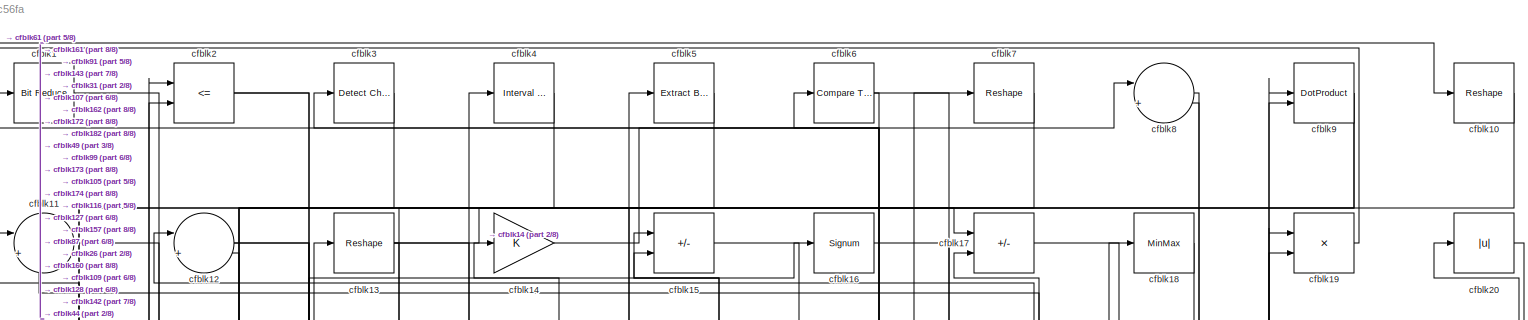
[diagram: root canvas - part 1/8, full width, top band]
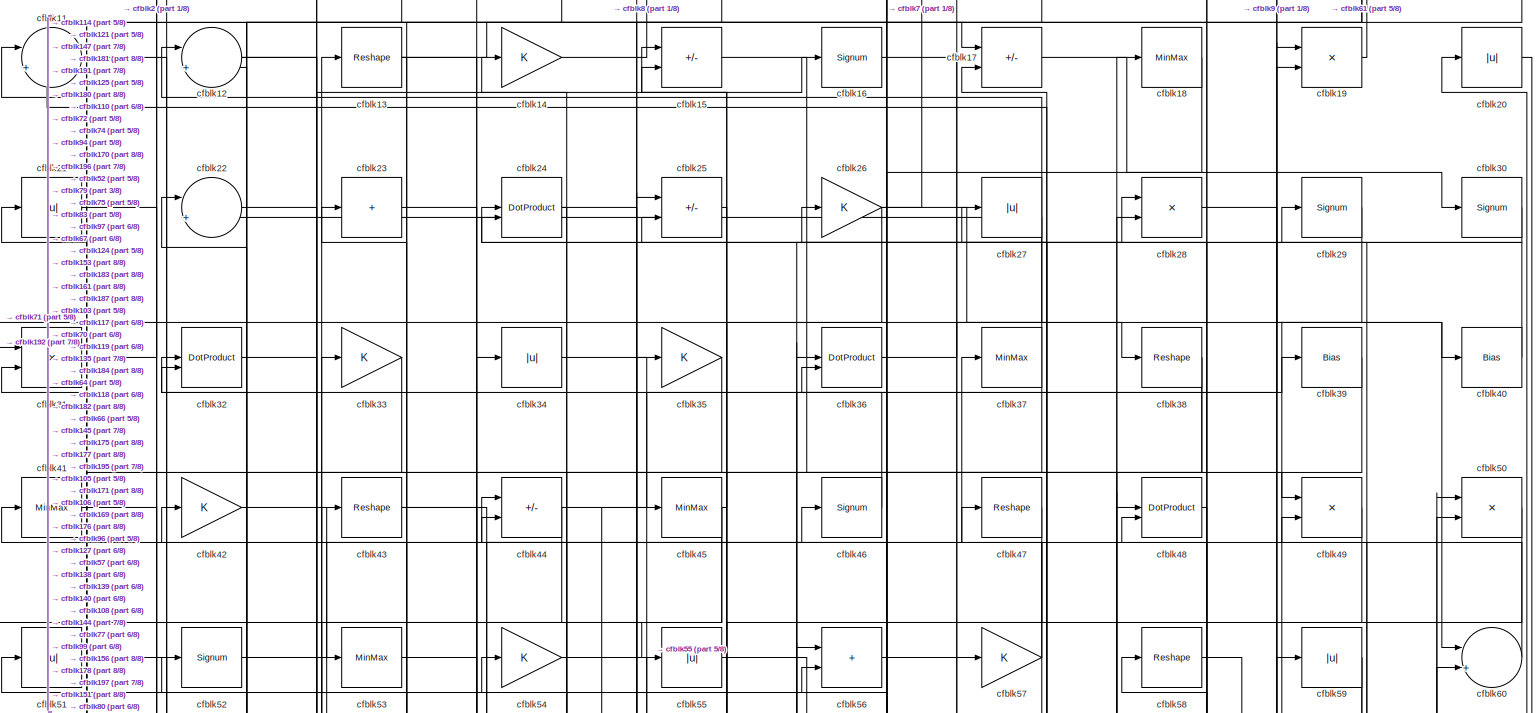
[diagram: root canvas - part 2/8, full width, top band]
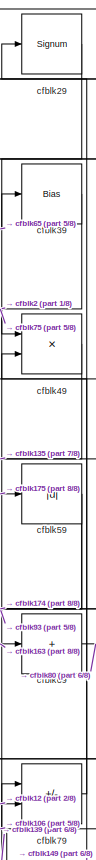
[diagram: root canvas - part 3/8, top right region]
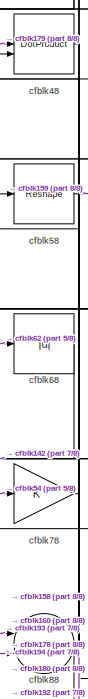
[diagram: root canvas - part 4/8, top right region]
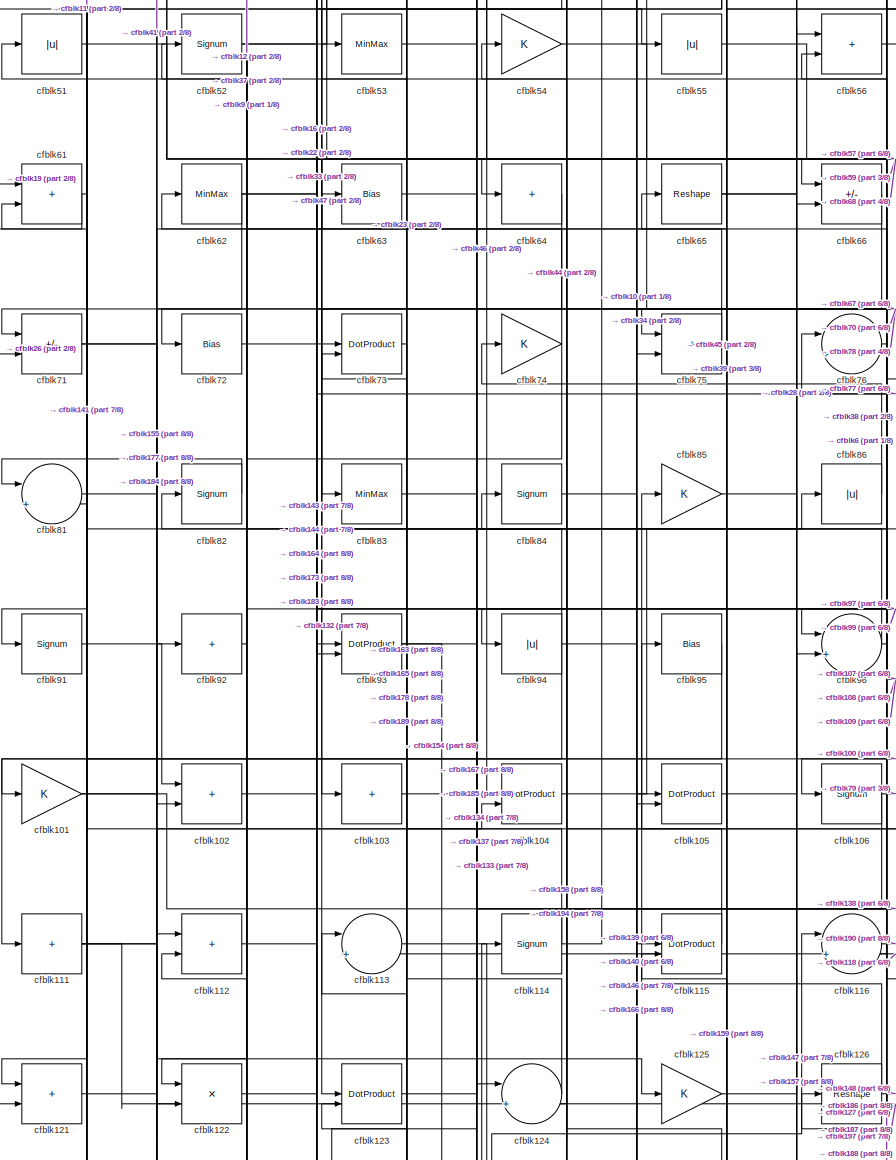
[diagram: root canvas - part 5/8, middle left region]
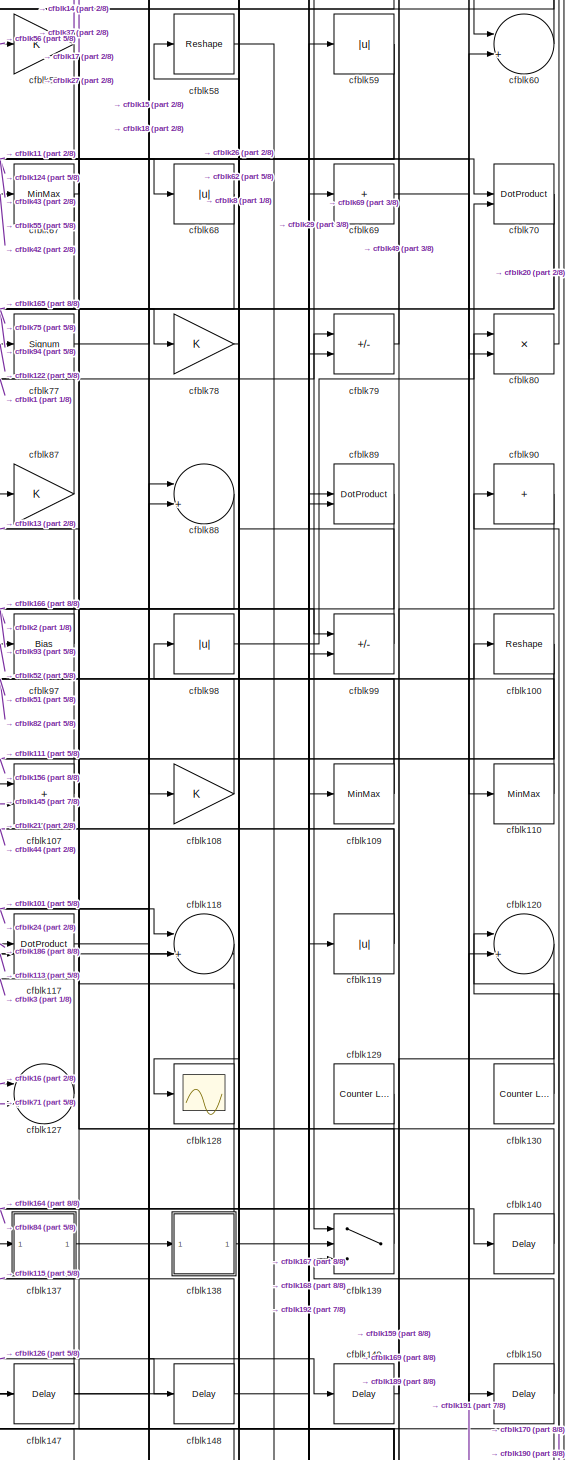
[diagram: root canvas - part 6/8, middle right region]
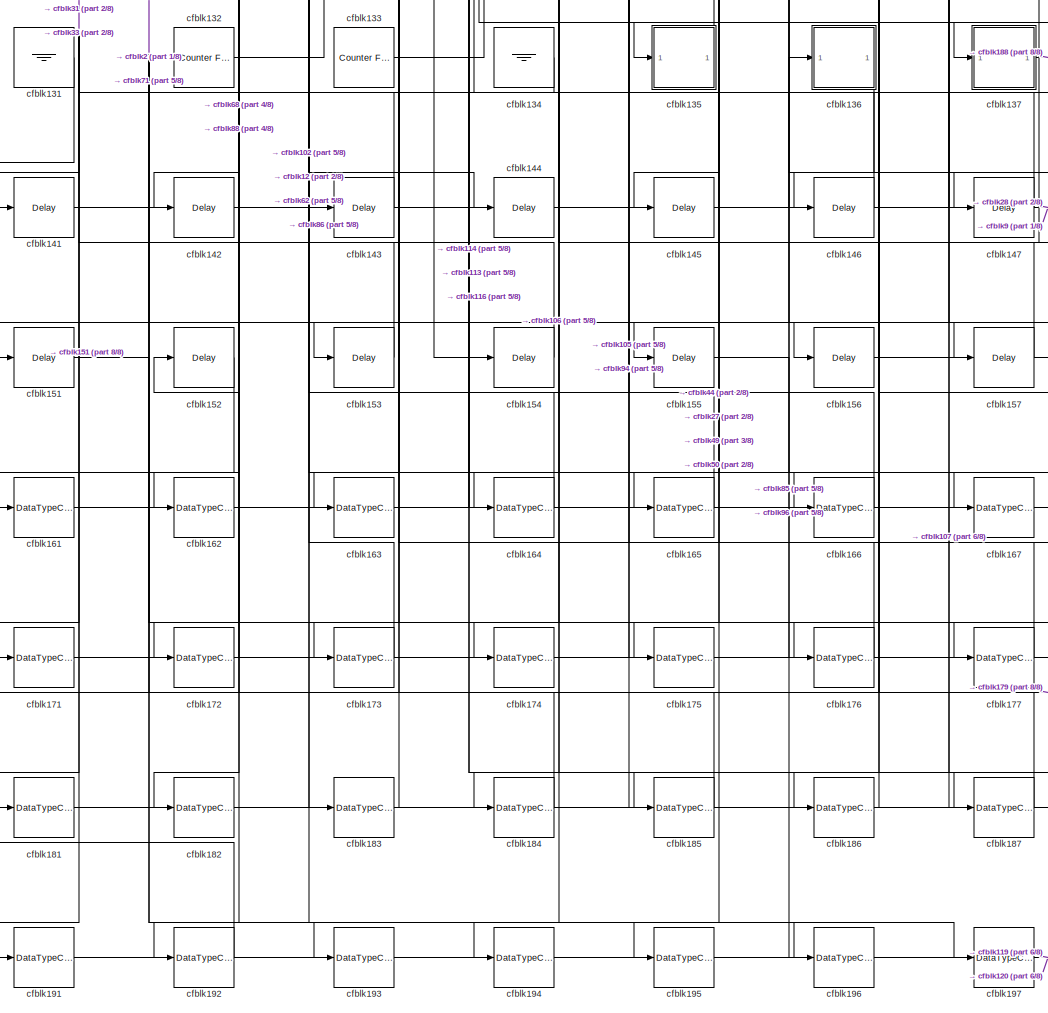
[diagram: root canvas - part 7/8, bottom center region]
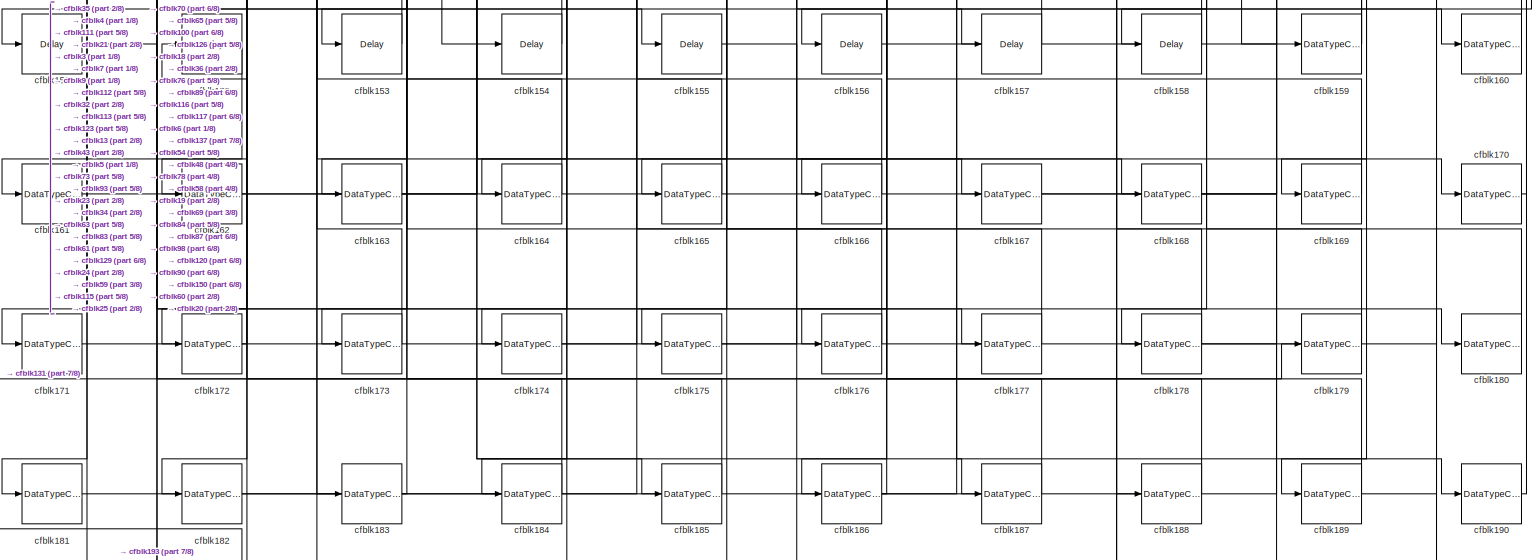
[diagram: root canvas - part 8/8, full width, bottom band]
MODEL slx_aa480e6c56fa
KIND model
CONFIG AbsTol = auto
CONFIG EnableMultiTasking = off
CONFIG FixedStep = auto
CONFIG MaxStep = auto
CONFIG MinStep = auto
CONFIG RelTol = 1e-3
CONFIG SampleTimeConstraint = Unconstrained
CONFIG SolverName = VariableStepAuto
CONFIG StartTime = 0.0
CONFIG StopTime = 10.0
BLOCK [Reference] cfblk1  REF=hdlsllib/Logic and Bit
Operations/Bit Reduce
  SourceBlock = hdlsllib/Logic and Bit\nOperations/Bit Reduce
  SourceType = Bit Reduce
BLOCK [Reshape] cfblk10
BLOCK [Reshape] cfblk100
BLOCK [Gain] cfblk101
BLOCK [Sum] cfblk102
  IconShape = rectangular
BLOCK [Sum] cfblk103
  IconShape = rectangular
  Inputs = +
BLOCK [DotProduct] cfblk104
  OutDataTypeStr = Inherit: Inherit via internal rule
BLOCK [DotProduct] cfblk105
  OutDataTypeStr = Inherit: Inherit via internal rule
BLOCK [Signum] cfblk106
BLOCK [Sum] cfblk107
  IconShape = rectangular
BLOCK [Gain] cfblk108
BLOCK [MinMax] cfblk109
BLOCK [Sum] cfblk11
  Inputs = |++
BLOCK [MinMax] cfblk110
BLOCK [Sum] cfblk111
  IconShape = rectangular
  Inputs = +
BLOCK [Sum] cfblk112
  IconShape = rectangular
BLOCK [Sum] cfblk113
  Inputs = |++
BLOCK [Signum] cfblk114
BLOCK [DotProduct] cfblk115
  OutDataTypeStr = Inherit: Inherit via internal rule
BLOCK [Sum] cfblk116
  Inputs = |++
BLOCK [DotProduct] cfblk117
  OutDataTypeStr = Inherit: Inherit via internal rule
BLOCK [Sum] cfblk118
  Inputs = |++
BLOCK [Abs] cfblk119
  SaturateOnIntegerOverflow = off
BLOCK [Sum] cfblk12
  Inputs = |++
BLOCK [Sum] cfblk120
  Inputs = |++
BLOCK [Sum] cfblk121
  IconShape = rectangular
BLOCK [Product] cfblk122
  Inputs = */
  RndMeth = Zero
  SaturateOnIntegerOverflow = on
BLOCK [DotProduct] cfblk123
  OutDataTypeStr = Inherit: Inherit via internal rule
BLOCK [Sum] cfblk124
  Inputs = |++
BLOCK [Gain] cfblk125
BLOCK [Reshape] cfblk126
BLOCK [Sum] cfblk127
  Inputs = |++
BLOCK [Scope] cfblk128
  Floating = off
  NumInputPorts = 1
  ScopeSpecificationString = Simulink.scopes.TimeScopeBlockCfg('CurrentConfiguration', extmgr.ConfigurationSet(extmgr.Configuration('Core','General UI',true),extmgr.Configuration('Core','Source UI',true),extmgr.Configuration('Sources','WiredSimulink',true,'DataLoggingVariableName','ScopeData2','DataLoggingSaveFormat','Array','DataLoggingLimitDataPoints',true,'DataLoggingDecimation','1'),extmgr.Configuration('Visuals','Time Do...<+868ch>
BLOCK [Reference] cfblk129  REF=hdlsllib/Sources/Counter
Limited
  SourceBlock = hdlsllib/Sources/Counter\nLimited
  SourceType = Counter Limited
BLOCK [Reshape] cfblk13
BLOCK [Reference] cfblk130  REF=hdlsllib/Sources/Counter
Limited
  SourceBlock = hdlsllib/Sources/Counter\nLimited
  SourceType = Counter Limited
BLOCK [Ground] cfblk131
BLOCK [Reference] cfblk132  REF=hdlsllib/Sources/Counter
Free-Running
  SourceBlock = hdlsllib/Sources/Counter\nFree-Running
  SourceType = Counter Free-Running
BLOCK [Reference] cfblk133  REF=hdlsllib/Sources/Counter
Free-Running
  SourceBlock = hdlsllib/Sources/Counter\nFree-Running
  SourceType = Counter Free-Running
BLOCK [Ground] cfblk134
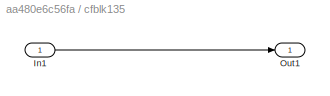
BLOCK [SubSystem] cfblk135
  LibrarySourceBlock = hdlsllib/Ports &\nSubsystems/Subsystem
BLOCK [Inport] cfblk135/In1
BLOCK [Outport] cfblk135/Out1
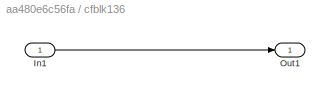
BLOCK [SubSystem] cfblk136
  LibrarySourceBlock = hdlsllib/Ports &\nSubsystems/Subsystem
BLOCK [Inport] cfblk136/In1
BLOCK [Outport] cfblk136/Out1
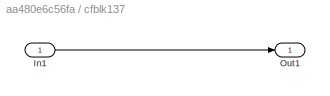
BLOCK [SubSystem] cfblk137
  LibrarySourceBlock = hdlsllib/Ports &\nSubsystems/Subsystem
BLOCK [Inport] cfblk137/In1
BLOCK [Outport] cfblk137/Out1
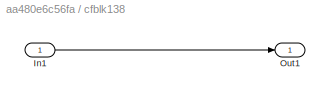
BLOCK [SubSystem] cfblk138
  LibrarySourceBlock = hdlsllib/Ports &\nSubsystems/Subsystem
BLOCK [Inport] cfblk138/In1
BLOCK [Outport] cfblk138/Out1
BLOCK [Switch] cfblk139
  InputSameDT = off
  SaturateOnIntegerOverflow = off
BLOCK [Gain] cfblk14
BLOCK [Delay] cfblk140
  InputPortMap = u0
  SampleTime = 1
BLOCK [Delay] cfblk141
  InputPortMap = u0
  SampleTime = 1
BLOCK [Delay] cfblk142
  InputPortMap = u0
  SampleTime = 1
BLOCK [Delay] cfblk143
  InputPortMap = u0
  SampleTime = 1
BLOCK [Delay] cfblk144
  InputPortMap = u0
  SampleTime = 1
BLOCK [Delay] cfblk145
  InputPortMap = u0
  SampleTime = 1
BLOCK [Delay] cfblk146
  InputPortMap = u0
  SampleTime = 1
BLOCK [Delay] cfblk147
  InputPortMap = u0
  SampleTime = 1
BLOCK [Delay] cfblk148
  InputPortMap = u0
  SampleTime = 1
BLOCK [Delay] cfblk149
  InputPortMap = u0
  SampleTime = 1
BLOCK [Sum] cfblk15
  IconShape = rectangular
  Inputs = +-
BLOCK [Delay] cfblk150
  InputPortMap = u0
  SampleTime = 1
BLOCK [Delay] cfblk151
  InputPortMap = u0
  SampleTime = 1
BLOCK [Delay] cfblk152
  InputPortMap = u0
  SampleTime = 1
BLOCK [Delay] cfblk153
  InputPortMap = u0
  SampleTime = 1
BLOCK [Delay] cfblk154
  InputPortMap = u0
  SampleTime = 1
BLOCK [Delay] cfblk155
  InputPortMap = u0
  SampleTime = 1
BLOCK [Delay] cfblk156
  InputPortMap = u0
  SampleTime = 1
BLOCK [Delay] cfblk157
  InputPortMap = u0
  SampleTime = 1
BLOCK [Delay] cfblk158
  InputPortMap = u0
  SampleTime = 1
BLOCK [DataTypeConversion] cfblk159
  RndMeth = Floor
  SaturateOnIntegerOverflow = off
BLOCK [Signum] cfblk16
BLOCK [DataTypeConversion] cfblk160
  OutDataTypeStr = uint8
  RndMeth = Floor
  SaturateOnIntegerOverflow = off
BLOCK [DataTypeConversion] cfblk161
  OutDataTypeStr = uint8
  RndMeth = Floor
  SaturateOnIntegerOverflow = off
BLOCK [DataTypeConversion] cfblk162
  OutDataTypeStr = uint8
  RndMeth = Floor
  SaturateOnIntegerOverflow = off
BLOCK [DataTypeConversion] cfblk163
  OutDataTypeStr = uint8
  RndMeth = Floor
  SaturateOnIntegerOverflow = off
BLOCK [DataTypeConversion] cfblk164
  OutDataTypeStr = uint8
  RndMeth = Floor
  SaturateOnIntegerOverflow = off
BLOCK [DataTypeConversion] cfblk165
  OutDataTypeStr = uint8
  RndMeth = Floor
  SaturateOnIntegerOverflow = off
BLOCK [DataTypeConversion] cfblk166
  OutDataTypeStr = uint8
  RndMeth = Floor
  SaturateOnIntegerOverflow = off
BLOCK [DataTypeConversion] cfblk167
  OutDataTypeStr = uint8
  RndMeth = Floor
  SaturateOnIntegerOverflow = off
BLOCK [DataTypeConversion] cfblk168
  OutDataTypeStr = uint8
  RndMeth = Floor
  SaturateOnIntegerOverflow = off
BLOCK [DataTypeConversion] cfblk169
  OutDataTypeStr = uint8
  RndMeth = Floor
  SaturateOnIntegerOverflow = off
BLOCK [Sum] cfblk17
  IconShape = rectangular
  Inputs = +-
BLOCK [DataTypeConversion] cfblk170
  OutDataTypeStr = uint8
  RndMeth = Floor
  SaturateOnIntegerOverflow = off
BLOCK [DataTypeConversion] cfblk171
  OutDataTypeStr = uint8
  RndMeth = Floor
  SaturateOnIntegerOverflow = off
BLOCK [DataTypeConversion] cfblk172
  OutDataTypeStr = uint8
  RndMeth = Floor
  SaturateOnIntegerOverflow = off
BLOCK [DataTypeConversion] cfblk173
  OutDataTypeStr = uint8
  RndMeth = Floor
  SaturateOnIntegerOverflow = off
BLOCK [DataTypeConversion] cfblk174
  OutDataTypeStr = uint8
  RndMeth = Floor
  SaturateOnIntegerOverflow = off
BLOCK [DataTypeConversion] cfblk175
  OutDataTypeStr = uint8
  RndMeth = Floor
  SaturateOnIntegerOverflow = off
BLOCK [DataTypeConversion] cfblk176
  OutDataTypeStr = uint8
  RndMeth = Floor
  SaturateOnIntegerOverflow = off
BLOCK [DataTypeConversion] cfblk177
  OutDataTypeStr = uint8
  RndMeth = Floor
  SaturateOnIntegerOverflow = off
BLOCK [DataTypeConversion] cfblk178
  RndMeth = Floor
  SaturateOnIntegerOverflow = off
BLOCK [DataTypeConversion] cfblk179
  OutDataTypeStr = uint8
  RndMeth = Floor
  SaturateOnIntegerOverflow = off
BLOCK [MinMax] cfblk18
BLOCK [DataTypeConversion] cfblk180
  OutDataTypeStr = uint8
  RndMeth = Floor
  SaturateOnIntegerOverflow = off
BLOCK [DataTypeConversion] cfblk181
  OutDataTypeStr = uint8
  RndMeth = Floor
  SaturateOnIntegerOverflow = off
BLOCK [DataTypeConversion] cfblk182
  OutDataTypeStr = uint8
  RndMeth = Floor
  SaturateOnIntegerOverflow = off
BLOCK [DataTypeConversion] cfblk183
  OutDataTypeStr = uint8
  RndMeth = Floor
  SaturateOnIntegerOverflow = off
BLOCK [DataTypeConversion] cfblk184
  OutDataTypeStr = uint8
  RndMeth = Floor
  SaturateOnIntegerOverflow = off
BLOCK [DataTypeConversion] cfblk185
  OutDataTypeStr = uint8
  RndMeth = Floor
  SaturateOnIntegerOverflow = off
BLOCK [DataTypeConversion] cfblk186
  RndMeth = Floor
  SaturateOnIntegerOverflow = off
BLOCK [DataTypeConversion] cfblk187
  OutDataTypeStr = uint8
  RndMeth = Floor
  SaturateOnIntegerOverflow = off
BLOCK [DataTypeConversion] cfblk188
  OutDataTypeStr = uint8
  RndMeth = Floor
  SaturateOnIntegerOverflow = off
BLOCK [DataTypeConversion] cfblk189
  RndMeth = Floor
  SaturateOnIntegerOverflow = off
BLOCK [Product] cfblk19
  Inputs = */
  RndMeth = Zero
  SaturateOnIntegerOverflow = on
BLOCK [DataTypeConversion] cfblk190
  OutDataTypeStr = uint8
  RndMeth = Floor
  SaturateOnIntegerOverflow = off
BLOCK [DataTypeConversion] cfblk191
  OutDataTypeStr = uint8
  RndMeth = Floor
  SaturateOnIntegerOverflow = off
BLOCK [DataTypeConversion] cfblk192
  RndMeth = Floor
  SaturateOnIntegerOverflow = off
BLOCK [DataTypeConversion] cfblk193
  OutDataTypeStr = uint8
  RndMeth = Floor
  SaturateOnIntegerOverflow = off
BLOCK [DataTypeConversion] cfblk194
  OutDataTypeStr = uint8
  RndMeth = Floor
  SaturateOnIntegerOverflow = off
BLOCK [DataTypeConversion] cfblk195
  OutDataTypeStr = uint8
  RndMeth = Floor
  SaturateOnIntegerOverflow = off
BLOCK [DataTypeConversion] cfblk196
  OutDataTypeStr = uint8
  RndMeth = Floor
  SaturateOnIntegerOverflow = off
BLOCK [DataTypeConversion] cfblk197
  OutDataTypeStr = uint8
  RndMeth = Floor
  SaturateOnIntegerOverflow = off
BLOCK [RelationalOperator] cfblk2
  InputSameDT = off
  Operator = <=
  OutDataTypeStr = boolean
BLOCK [Abs] cfblk20
  SaturateOnIntegerOverflow = off
BLOCK [Abs] cfblk21
  SaturateOnIntegerOverflow = off
BLOCK [Sum] cfblk22
  Inputs = |++
BLOCK [Sum] cfblk23
  IconShape = rectangular
  Inputs = +
BLOCK [DotProduct] cfblk24
  OutDataTypeStr = Inherit: Inherit via internal rule
BLOCK [Sum] cfblk25
  IconShape = rectangular
  Inputs = +-
BLOCK [Gain] cfblk26
BLOCK [Abs] cfblk27
  SaturateOnIntegerOverflow = off
BLOCK [Product] cfblk28
  Inputs = */
  RndMeth = Zero
  SaturateOnIntegerOverflow = on
BLOCK [Signum] cfblk29
BLOCK [Reference] cfblk3  REF=simulink/Logic and Bit
Operations/Detect
Change
  LibrarySourceBlock = hdlsllib/Logic and Bit\nOperations/Detect\nChange
  SourceBlock = simulink/Logic and Bit\nOperations/Detect\nChange
  SourceType = Detect Change
BLOCK [Signum] cfblk30
BLOCK [Product] cfblk31
  Inputs = */
  RndMeth = Zero
  SaturateOnIntegerOverflow = on
BLOCK [DotProduct] cfblk32
  OutDataTypeStr = Inherit: Inherit via internal rule
BLOCK [Gain] cfblk33
BLOCK [Abs] cfblk34
  SaturateOnIntegerOverflow = off
BLOCK [Gain] cfblk35
BLOCK [DotProduct] cfblk36
  OutDataTypeStr = Inherit: Inherit via internal rule
BLOCK [MinMax] cfblk37
BLOCK [Reshape] cfblk38
BLOCK [Bias] cfblk39
  Bias = 0.0
  SaturateOnIntegerOverflow = off
BLOCK [Reference] cfblk4  REF=hdlsllib/Logic and Bit
Operations/Interval Test
  SourceBlock = hdlsllib/Logic and Bit\nOperations/Interval Test
  SourceType = Interval Test
BLOCK [Bias] cfblk40
  Bias = 0.0
  SaturateOnIntegerOverflow = off
BLOCK [MinMax] cfblk41
BLOCK [Gain] cfblk42
BLOCK [Reshape] cfblk43
BLOCK [Sum] cfblk44
  IconShape = rectangular
  Inputs = +-
BLOCK [MinMax] cfblk45
BLOCK [Signum] cfblk46
BLOCK [Reshape] cfblk47
BLOCK [DotProduct] cfblk48
  OutDataTypeStr = Inherit: Inherit via internal rule
BLOCK [Product] cfblk49
  Inputs = */
  RndMeth = Zero
  SaturateOnIntegerOverflow = on
BLOCK [Reference] cfblk5  REF=simulink/Logic and Bit
Operations/Extract Bits
  LibrarySourceBlock = hdlsllib/Logic and Bit\nOperations/Extract Bits
  SourceBlock = simulink/Logic and Bit\nOperations/Extract Bits
  SourceType = Extract Bits
BLOCK [Product] cfblk50
  Inputs = */
  RndMeth = Zero
  SaturateOnIntegerOverflow = on
BLOCK [Abs] cfblk51
  SaturateOnIntegerOverflow = off
BLOCK [Signum] cfblk52
BLOCK [MinMax] cfblk53
BLOCK [Gain] cfblk54
BLOCK [Abs] cfblk55
  SaturateOnIntegerOverflow = off
BLOCK [Sum] cfblk56
  IconShape = rectangular
BLOCK [Gain] cfblk57
BLOCK [Reshape] cfblk58
BLOCK [Abs] cfblk59
  SaturateOnIntegerOverflow = off
BLOCK [Reference] cfblk6  REF=hdlsllib/Logic and Bit
Operations/Compare
To Zero
  SourceBlock = hdlsllib/Logic and Bit\nOperations/Compare\nTo Zero
  SourceType = Compare To Zero
BLOCK [Sum] cfblk60
  Inputs = |++
BLOCK [Sum] cfblk61
  IconShape = rectangular
BLOCK [MinMax] cfblk62
BLOCK [Bias] cfblk63
  Bias = 0.0
  SaturateOnIntegerOverflow = off
BLOCK [Sum] cfblk64
  IconShape = rectangular
  Inputs = +
BLOCK [Reshape] cfblk65
BLOCK [Sum] cfblk66
  IconShape = rectangular
  Inputs = +-
BLOCK [MinMax] cfblk67
BLOCK [Abs] cfblk68
  SaturateOnIntegerOverflow = off
BLOCK [Sum] cfblk69
  IconShape = rectangular
  Inputs = +
BLOCK [Reshape] cfblk7
BLOCK [DotProduct] cfblk70
  OutDataTypeStr = Inherit: Inherit via internal rule
BLOCK [Sum] cfblk71
  IconShape = rectangular
  Inputs = +-
BLOCK [Bias] cfblk72
  Bias = 0.0
  SaturateOnIntegerOverflow = off
BLOCK [DotProduct] cfblk73
  OutDataTypeStr = Inherit: Inherit via internal rule
BLOCK [Gain] cfblk74
BLOCK [Sum] cfblk75
  IconShape = rectangular
BLOCK [Sum] cfblk76
  Inputs = |++
BLOCK [Signum] cfblk77
BLOCK [Gain] cfblk78
BLOCK [Sum] cfblk79
  IconShape = rectangular
  Inputs = +-
BLOCK [Sum] cfblk8
  Inputs = |++
BLOCK [Product] cfblk80
  Inputs = */
  RndMeth = Zero
  SaturateOnIntegerOverflow = on
BLOCK [Sum] cfblk81
  Inputs = |++
BLOCK [Signum] cfblk82
BLOCK [MinMax] cfblk83
BLOCK [Signum] cfblk84
BLOCK [Gain] cfblk85
BLOCK [Abs] cfblk86
  SaturateOnIntegerOverflow = off
BLOCK [Gain] cfblk87
BLOCK [Sum] cfblk88
  Inputs = |++
BLOCK [DotProduct] cfblk89
  OutDataTypeStr = Inherit: Inherit via internal rule
BLOCK [DotProduct] cfblk9
  OutDataTypeStr = Inherit: Inherit via internal rule
BLOCK [Sum] cfblk90
  IconShape = rectangular
  Inputs = +
BLOCK [Signum] cfblk91
BLOCK [Sum] cfblk92
  IconShape = rectangular
  Inputs = +
BLOCK [DotProduct] cfblk93
  OutDataTypeStr = Inherit: Inherit via internal rule
BLOCK [Abs] cfblk94
  SaturateOnIntegerOverflow = off
BLOCK [Bias] cfblk95
  Bias = 0.0
  SaturateOnIntegerOverflow = off
BLOCK [Sum] cfblk96
  Inputs = |++
BLOCK [Bias] cfblk97
  Bias = 0.0
  SaturateOnIntegerOverflow = off
BLOCK [Abs] cfblk98
  SaturateOnIntegerOverflow = off
BLOCK [Sum] cfblk99
  IconShape = rectangular
  Inputs = +-
NET cfblk100:1 -> cfblk111:1, cfblk156:1
NET cfblk101:1 -> cfblk138:1, cfblk92:1
LINE cfblk102:1 -> cfblk143:1
LINE cfblk103:1 -> cfblk46:1
LINE cfblk104:1 -> cfblk66:2
LINE cfblk105:1 -> cfblk28:1
NET cfblk106:1 -> cfblk194:1, cfblk79:1
LINE cfblk107:1 -> cfblk51:1
LINE cfblk108:1 -> cfblk82:1
NET cfblk109:1 -> cfblk62:1, cfblk8:2
LINE cfblk10:1 -> cfblk105:2
LINE cfblk110:1 -> cfblk42:1
NET cfblk111:1 -> cfblk122:2, cfblk155:1, cfblk177:1
LINE cfblk112:1 -> cfblk183:1
LINE cfblk113:1 -> cfblk137:1
NET cfblk114:1 -> cfblk45:1, cfblk53:1
LINE cfblk115:1 -> cfblk95:1
LINE cfblk116:1 -> cfblk190:1
LINE cfblk117:1 -> cfblk149:1
LINE cfblk118:1 -> cfblk113:2
NET cfblk119:1 -> cfblk21:1, cfblk44:2
LINE cfblk11:1 -> cfblk110:1
LINE cfblk120:1 -> cfblk189:1
LINE cfblk121:1 -> cfblk104:2
LINE cfblk122:1 -> cfblk77:1
LINE cfblk123:1 -> cfblk104:1
LINE cfblk124:1 -> cfblk23:1
LINE cfblk125:1 -> cfblk56:1
NET cfblk126:1 -> cfblk148:1, cfblk85:1
LINE cfblk127:1 -> cfblk3:1
LINE cfblk129:1 -> cfblk164:1
NET cfblk12:1 -> cfblk196:1, cfblk79:2
LINE cfblk130:1 -> cfblk70:2
LINE cfblk131:1 -> cfblk179:1
LINE cfblk132:1 -> cfblk86:1
LINE cfblk133:1 -> cfblk116:1
LINE cfblk134:1 -> cfblk114:1
LINE cfblk135/In1:1 -> cfblk135/Out1:1
LINE cfblk135:1 -> cfblk44:1
LINE cfblk136/In1:1 -> cfblk136/Out1:1
LINE cfblk136:1 -> cfblk146:1
LINE cfblk137/In1:1 -> cfblk137/Out1:1
LINE cfblk137:1 -> cfblk188:1
LINE cfblk138/In1:1 -> cfblk138/Out1:1
NET cfblk138:1 -> cfblk100:1, cfblk17:2
LINE cfblk139:1 -> cfblk24:1
NET cfblk13:1 -> cfblk118:1, cfblk153:1, cfblk17:1
LINE cfblk140:1 -> cfblk11:2
LINE cfblk141:1 -> cfblk96:2
LINE cfblk142:1 -> cfblk9:1
LINE cfblk143:1 -> cfblk2:1
LINE cfblk144:1 -> cfblk28:2
LINE cfblk145:1 -> cfblk107:2
LINE cfblk146:1 -> cfblk105:1
LINE cfblk147:1 -> cfblk31:2
LINE cfblk148:1 -> cfblk115:2
LINE cfblk149:1 -> cfblk49:2
LINE cfblk14:1 -> cfblk8:1
LINE cfblk150:1 -> cfblk139:3
LINE cfblk151:1 -> cfblk193:1
LINE cfblk152:1 -> cfblk171:1
LINE cfblk153:1 -> cfblk32:2
LINE cfblk154:1 -> cfblk61:2
LINE cfblk155:1 -> cfblk168:1
LINE cfblk156:1 -> cfblk19:2
LINE cfblk157:1 -> cfblk6:1
LINE cfblk158:1 -> cfblk54:1
NET cfblk159:1 -> cfblk65:1, cfblk84:1, cfblk87:1, cfblk98:1
LINE cfblk15:1 -> cfblk108:1
LINE cfblk160:1 -> cfblk58:1
LINE cfblk161:1 -> cfblk34:1
LINE cfblk162:1 -> cfblk4:1
LINE cfblk163:1 -> cfblk69:1
LINE cfblk164:1 -> cfblk73:1
LINE cfblk165:1 -> cfblk73:2
LINE cfblk166:1 -> cfblk115:1
LINE cfblk167:1 -> cfblk89:1
LINE cfblk168:1 -> cfblk89:2
LINE cfblk169:1 -> cfblk36:2
LINE cfblk16:1 -> cfblk127:1
LINE cfblk170:1 -> cfblk90:1
LINE cfblk171:1 -> cfblk36:1
LINE cfblk172:1 -> cfblk152:1
LINE cfblk173:1 -> cfblk93:1
LINE cfblk174:1 -> cfblk5:1
LINE cfblk175:1 -> cfblk59:1
LINE cfblk176:1 -> cfblk25:1
LINE cfblk177:1 -> cfblk25:2
NET cfblk178:1 -> cfblk123:2, cfblk60:2
LINE cfblk179:1 -> cfblk48:1
LINE cfblk17:1 -> cfblk30:1
LINE cfblk180:1 -> cfblk48:2
LINE cfblk181:1 -> cfblk19:1
LINE cfblk182:1 -> cfblk35:1
LINE cfblk183:1 -> cfblk43:1
LINE cfblk184:1 -> cfblk112:1
LINE cfblk185:1 -> cfblk112:2
NET cfblk186:1 -> cfblk117:1, cfblk126:1
LINE cfblk187:1 -> cfblk76:1
LINE cfblk188:1 -> cfblk76:2
NET cfblk189:1 -> cfblk113:1, cfblk150:1
LINE cfblk18:1 -> cfblk176:1
LINE cfblk190:1 -> cfblk120:1
LINE cfblk191:1 -> cfblk120:2
NET cfblk192:1 -> cfblk119:1, cfblk31:1
LINE cfblk193:1 -> cfblk88:1
LINE cfblk194:1 -> cfblk88:2
LINE cfblk195:1 -> cfblk136:1
LINE cfblk196:1 -> cfblk50:1
LINE cfblk197:1 -> cfblk50:2
LINE cfblk19:1 -> cfblk61:1
LINE cfblk1:1 -> cfblk107:1
LINE cfblk20:1 -> cfblk151:1
LINE cfblk21:1 -> cfblk180:1
LINE cfblk22:1 -> cfblk55:1
LINE cfblk23:1 -> cfblk187:1
NET cfblk24:1 -> cfblk118:2, cfblk184:1
LINE cfblk25:1 -> cfblk175:1
NET cfblk26:1 -> cfblk60:1, cfblk71:2, cfblk7:1
NET cfblk27:1 -> cfblk12:1, cfblk145:1
LINE cfblk28:1 -> cfblk40:1
LINE cfblk29:1 -> cfblk139:1
NET cfblk2:1 -> cfblk49:1, cfblk99:2
LINE cfblk30:1 -> cfblk24:2
LINE cfblk31:1 -> cfblk2:2
LINE cfblk32:1 -> cfblk170:1
LINE cfblk33:1 -> cfblk191:1
LINE cfblk34:1 -> cfblk66:1
LINE cfblk35:1 -> cfblk181:1
LINE cfblk36:1 -> cfblk38:1
NET cfblk37:1 -> cfblk22:2, cfblk72:1
NET cfblk38:1 -> cfblk106:1, cfblk64:1
LINE cfblk39:1 -> cfblk75:1
LINE cfblk3:1 -> cfblk172:1
LINE cfblk40:1 -> cfblk15:1
LINE cfblk41:1 -> cfblk125:1
LINE cfblk42:1 -> cfblk67:1
NET cfblk43:1 -> cfblk117:2, cfblk70:1
NET cfblk44:1 -> cfblk121:2, cfblk9:2
NET cfblk45:1 -> cfblk121:1, cfblk15:2, cfblk83:1
LINE cfblk46:1 -> cfblk32:1
LINE cfblk47:1 -> cfblk96:1
LINE cfblk48:1 -> cfblk178:1
LINE cfblk49:1 -> cfblk135:1
LINE cfblk4:1 -> cfblk161:1
LINE cfblk50:1 -> cfblk195:1
LINE cfblk51:1 -> cfblk103:1
NET cfblk52:1 -> cfblk47:1, cfblk97:1
LINE cfblk53:1 -> cfblk124:1
LINE cfblk54:1 -> cfblk78:1
LINE cfblk55:1 -> cfblk109:1
LINE cfblk56:1 -> cfblk57:1
NET cfblk57:1 -> cfblk124:2, cfblk14:1, cfblk37:1
LINE cfblk58:1 -> cfblk159:1
NET cfblk59:1 -> cfblk174:1, cfblk93:2
LINE cfblk5:1 -> cfblk173:1
LINE cfblk60:1 -> cfblk41:1
NET cfblk61:1 -> cfblk10:1, cfblk81:2
NET cfblk62:1 -> cfblk102:2, cfblk144:1, cfblk68:1
LINE cfblk63:1 -> cfblk167:1
LINE cfblk64:1 -> cfblk123:1
NET cfblk65:1 -> cfblk157:1, cfblk39:1
LINE cfblk66:1 -> cfblk71:1
NET cfblk67:1 -> cfblk27:1, cfblk94:1
LINE cfblk68:1 -> cfblk142:1
LINE cfblk69:1 -> cfblk80:2
NET cfblk6:1 -> cfblk116:2, cfblk160:1
NET cfblk70:1 -> cfblk165:1, cfblk75:2
NET cfblk71:1 -> cfblk127:2, cfblk197:1
LINE cfblk72:1 -> cfblk16:1
LINE cfblk73:1 -> cfblk163:1
NET cfblk74:1 -> cfblk122:1, cfblk12:2
LINE cfblk75:1 -> cfblk33:1
LINE cfblk76:1 -> cfblk186:1
LINE cfblk77:1 -> cfblk18:1
LINE cfblk78:1 -> cfblk158:1
LINE cfblk79:1 -> cfblk29:1
LINE cfblk7:1 -> cfblk162:1
LINE cfblk80:1 -> cfblk20:1
LINE cfblk81:1 -> cfblk63:1
LINE cfblk82:1 -> cfblk81:1
LINE cfblk83:1 -> cfblk185:1
LINE cfblk84:1 -> cfblk139:2
LINE cfblk85:1 -> cfblk147:1
LINE cfblk86:1 -> cfblk74:1
LINE cfblk87:1 -> cfblk1:1
LINE cfblk88:1 -> cfblk192:1
LINE cfblk89:1 -> cfblk166:1
LINE cfblk8:1 -> cfblk128:1
LINE cfblk90:1 -> cfblk169:1
LINE cfblk91:1 -> cfblk102:1
LINE cfblk92:1 -> cfblk52:1
NET cfblk93:1 -> cfblk154:1, cfblk99:1
NET cfblk94:1 -> cfblk140:1, cfblk141:1, cfblk22:1
LINE cfblk95:1 -> cfblk101:1
NET cfblk96:1 -> cfblk11:1, cfblk56:2
LINE cfblk97:1 -> cfblk13:1
LINE cfblk98:1 -> cfblk80:1
LINE cfblk99:1 -> cfblk26:1
NET cfblk9:1 -> cfblk182:1, cfblk91:1
note: NET lines group one-source signal fan-out (src -> all destinations, sorted); 1:1 wires keep LINE
